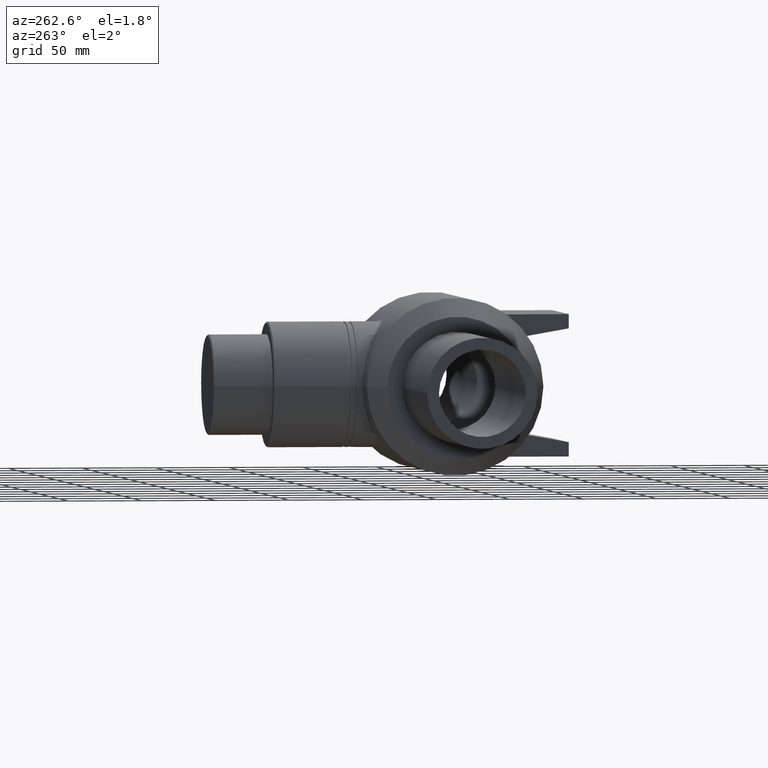
[diagram: clean part render]
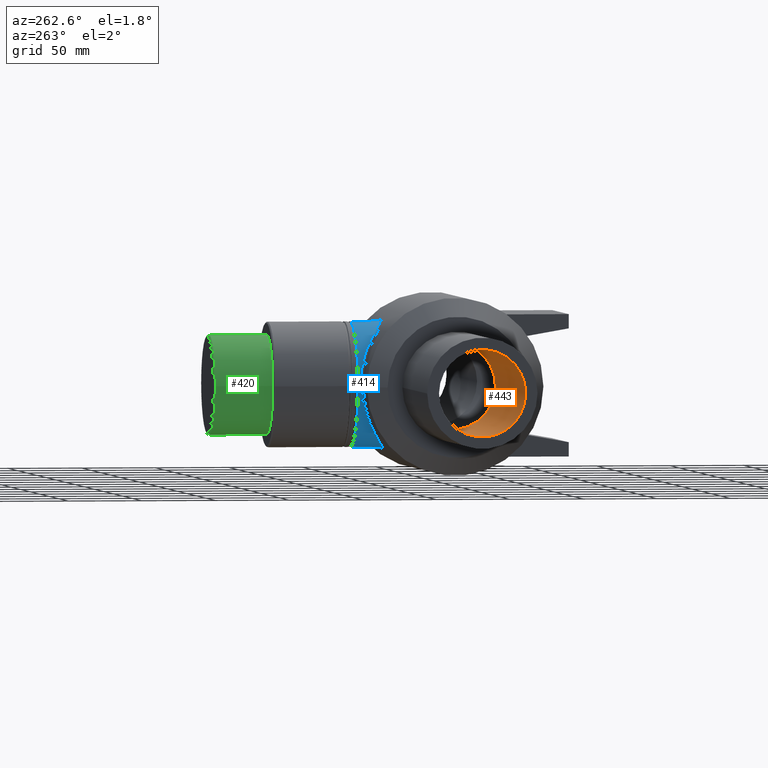
[diagram: same view with three faces highlighted in distinct colors, each labeled with its STEP entity id]
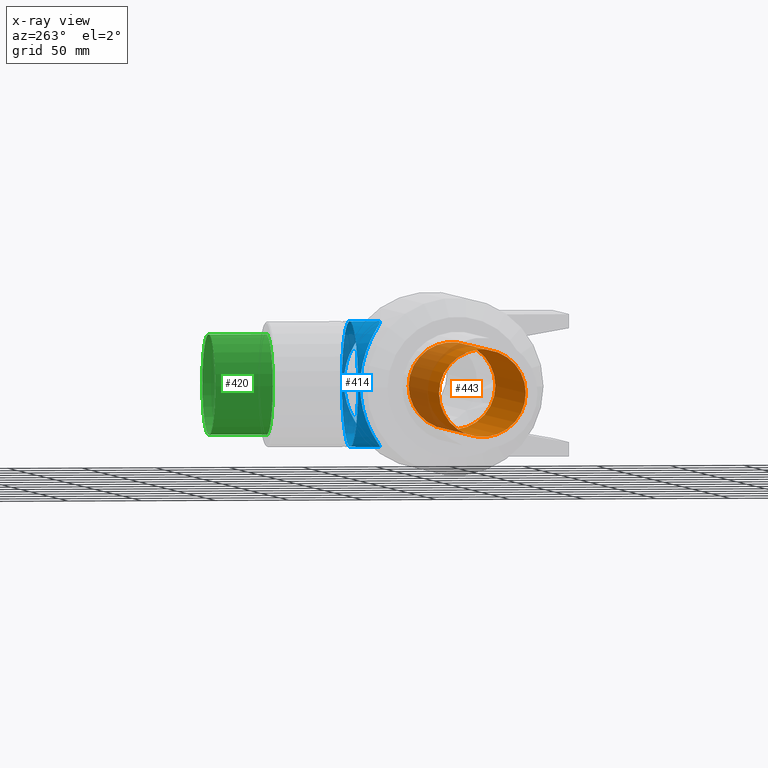
[diagram: x-ray of the same camera — body ghosted, the three highlighted faces saturated]
A machine part, auxiliary view with three faces highlighted in distinct colors.
The next image is the same camera in x-ray (body ghosted, the three faces saturated) — at least one of them is partly hidden behind the body in this view.
Their STEP definitions:

[orange] entity #443 — the highlighted cylindrical surface (bore or boss wall) has radius 29.5 mm, axis along (1, 0, 0).
#100=FACE_BOUND('',#196,.T.);
#110=CYLINDRICAL_SURFACE('',#501,29.5);
#141=FACE_OUTER_BOUND('',#195,.T.);
#195=EDGE_LOOP('',(#406));
#196=EDGE_LOOP('',(#407));
#226=CIRCLE('',#500,29.5);
#227=CIRCLE('',#502,29.5);
#265=VERTEX_POINT('',#942);
#266=VERTEX_POINT('',#945);
#313=EDGE_CURVE('',#265,#265,#226,.T.);
#314=EDGE_CURVE('',#266,#266,#227,.T.);
#406=ORIENTED_EDGE('',*,*,#314,.F.);
#407=ORIENTED_EDGE('',*,*,#313,.T.);
#443=ADVANCED_FACE('',(#141,#100),#110,.F.);
#500=AXIS2_PLACEMENT_3D('',#943,#632,#633);
#501=AXIS2_PLACEMENT_3D('',#944,#634,#635);
#502=AXIS2_PLACEMENT_3D('',#946,#636,#637);
#632=DIRECTION('center_axis',(1.,0.,0.));
#633=DIRECTION('ref_axis',(0.,0.,-1.));
#634=DIRECTION('center_axis',(1.,0.,0.));
#635=DIRECTION('ref_axis',(0.,1.,0.));
#636=DIRECTION('center_axis',(1.,0.,0.));
#637=DIRECTION('ref_axis',(0.,0.,-1.));
#942=CARTESIAN_POINT('',(-47.893762641914,29.5,0.));
#943=CARTESIAN_POINT('Origin',(-47.893762641914,0.,0.));
#944=CARTESIAN_POINT('Origin',(-127.446881320957,0.,0.));
#945=CARTESIAN_POINT('',(-207.,29.5,0.));
#946=CARTESIAN_POINT('Origin',(-207.,0.,0.));

[blue] entity #414 — the highlighted cylindrical surface (bore or boss wall) has radius 42.5 mm, axis along (0, 1, 0).
#78=FACE_BOUND('',#146,.T.);
#103=CYLINDRICAL_SURFACE('',#449,42.5);
#113=FACE_OUTER_BOUND('',#145,.T.);
#145=EDGE_LOOP('',(#320));
#146=EDGE_LOOP('',(#321));
#201=B_SPLINE_CURVE_WITH_KNOTS('',3,(#783,#784,#785,#786,#787,#788,#789,
#790,#791,#792,#793,#794,#795,#796,#797,#798,#799,#800,#801,#802,#803,#804,
#805,#806,#807,#808,#809),.UNSPECIFIED.,.T.,.F.,(4,1,1,1,1,1,1,1,1,1,1,
1,1,1,1,1,1,1,1,1,1,1,1,1,4),(13.4378781643652,14.397726604677,15.3575750449888,
17.2772719256124,18.2371203659242,19.196968806236,20.1568172465478,21.1166656868596,
22.3964636072753,23.6762615276911,24.9560594481068,26.2358573685225,26.8757563287304,
27.5156552889383,28.795453209354,30.0752511297697,31.3550490501855,32.6348469706012,
33.9146448910169,35.1944428114327,35.4077424648353,36.4742407318484,38.393937612472,
39.3537860527838,40.3136344930956),.UNSPECIFIED.);
#204=CIRCLE('',#450,42.5);
#230=VERTEX_POINT('',#781);
#231=VERTEX_POINT('',#838);
#269=EDGE_CURVE('',#230,#230,#201,.T.);
#271=EDGE_CURVE('',#231,#231,#204,.T.);
#320=ORIENTED_EDGE('',*,*,#271,.F.);
#321=ORIENTED_EDGE('',*,*,#269,.F.);
#414=ADVANCED_FACE('',(#113,#78),#103,.T.);
#449=AXIS2_PLACEMENT_3D('',#837,#510,#511);
#450=AXIS2_PLACEMENT_3D('',#839,#512,#513);
#510=DIRECTION('center_axis',(0.,1.,0.));
#511=DIRECTION('ref_axis',(-1.,0.,0.));
#512=DIRECTION('center_axis',(0.,1.,0.));
#513=DIRECTION('ref_axis',(1.,0.,0.));
#781=CARTESIAN_POINT('',(7.49400541621981E-15,43.0493902395841,-42.5));
#783=CARTESIAN_POINT('Ctrl Pts',(1.25698404267767E-5,43.0480225046465,-42.5005424073167));
#784=CARTESIAN_POINT('Ctrl Pts',(3.31372683486709,43.0480092307609,-42.500472329255));
#785=CARTESIAN_POINT('Ctrl Pts',(9.94107754026687,43.913881488286,-41.7089328960576));
#786=CARTESIAN_POINT('Ctrl Pts',(21.8843190824658,48.1874062859359,-37.3461269534512));
#787=CARTESIAN_POINT('Ctrl Pts',(31.5275075833872,53.9870544396641,-29.6438768625561));
#788=CARTESIAN_POINT('Ctrl Pts',(38.3660038482547,58.6608825073986,-19.1074770604644));
#789=CARTESIAN_POINT('Ctrl Pts',(41.7119166398985,61.1128337511332,-9.94419950297477));
#790=CARTESIAN_POINT('Ctrl Pts',(42.8950763578414,61.9941034239135,-0.0020380300446302));
#791=CARTESIAN_POINT('Ctrl Pts',(41.5808474291099,61.0140690529729,11.0567072920348));
#792=CARTESIAN_POINT('Ctrl Pts',(37.0467142288075,57.7015968158249,22.0731747138676));
#793=CARTESIAN_POINT('Ctrl Pts',(29.1797539044027,52.4957224728735,31.6869983521787));
#794=CARTESIAN_POINT('Ctrl Pts',(19.070884215594,47.0086326786858,38.6573475521818));
#795=CARTESIAN_POINT('Ctrl Pts',(8.84910537846431,43.6134175440461,41.975802555615));
#796=CARTESIAN_POINT('Ctrl Pts',(0.00121849886222416,42.8608743919858,42.6751883780441));
#797=CARTESIAN_POINT('Ctrl Pts',(-8.8511733426323,43.6140154104814,41.9756485531559));
#798=CARTESIAN_POINT('Ctrl Pts',(-19.0684267016382,47.007365344606,38.6576181564932));
#799=CARTESIAN_POINT('Ctrl Pts',(-29.181553690154,52.4976363672918,31.6871494067281));
#800=CARTESIAN_POINT('Ctrl Pts',(-37.0441098749641,57.6985962237677,22.0721243013389));
#801=CARTESIAN_POINT('Ctrl Pts',(-41.9991154287481,61.32048433932,10.0569935105954));
#802=CARTESIAN_POINT('Ctrl Pts',(-43.0726421096175,62.1291128449433,-3.40040474443963));
#803=CARTESIAN_POINT('Ctrl Pts',(-40.8138039419201,60.443023883324,-12.7386006268973));
#804=CARTESIAN_POINT('Ctrl Pts',(-37.407636672201,58.0079738399936,-20.558998252557));
#805=CARTESIAN_POINT('Ctrl Pts',(-31.7949095545494,54.1481429978695,-29.4339134432783));
#806=CARTESIAN_POINT('Ctrl Pts',(-21.8842002868569,48.1872196177261,-37.3446705423118));
#807=CARTESIAN_POINT('Ctrl Pts',(-9.94120804989313,43.9139611315994,-41.7093533644274));
#808=CARTESIAN_POINT('Ctrl Pts',(-3.31370169518624,43.0480357785321,-42.5006124853783));
#809=CARTESIAN_POINT('Ctrl Pts',(1.25698404261604E-5,43.0480225046465,-42.5005424073167));
#837=CARTESIAN_POINT('Origin',(0.,31.575,0.));
#838=CARTESIAN_POINT('',(-42.5,63.15,0.));
#839=CARTESIAN_POINT('Origin',(0.,63.15,0.));

[green] entity #420 — the highlighted cylindrical surface (bore or boss wall) has radius 34 mm, axis along (0, 1, 0).
#87=FACE_BOUND('',#161,.T.);
#106=CYLINDRICAL_SURFACE('',#468,34.);
#119=FACE_OUTER_BOUND('',#160,.T.);
#160=EDGE_LOOP('',(#341));
#161=EDGE_LOOP('',(#342));
#214=CIRCLE('',#464,34.);
#215=CIRCLE('',#466,34.);
#245=VERTEX_POINT('',#870);
#246=VERTEX_POINT('',#873);
#285=EDGE_CURVE('',#245,#245,#214,.T.);
#286=EDGE_CURVE('',#246,#246,#215,.T.);
#341=ORIENTED_EDGE('',*,*,#285,.T.);
#342=ORIENTED_EDGE('',*,*,#286,.F.);
#420=ADVANCED_FACE('',(#119,#87),#106,.T.);
#464=AXIS2_PLACEMENT_3D('',#871,#544,#545);
#466=AXIS2_PLACEMENT_3D('',#874,#548,#549);
#468=AXIS2_PLACEMENT_3D('',#877,#552,#553);
#544=DIRECTION('center_axis',(0.,1.,0.));
#545=DIRECTION('ref_axis',(1.,0.,0.));
#548=DIRECTION('center_axis',(0.,1.,0.));
#549=DIRECTION('ref_axis',(1.,0.,0.));
#552=DIRECTION('center_axis',(0.,1.,0.));
#553=DIRECTION('ref_axis',(-1.,0.,0.));
#870=CARTESIAN_POINT('',(-34.,120.,0.));
#871=CARTESIAN_POINT('Origin',(0.,120.,0.));
#873=CARTESIAN_POINT('',(-34.,159.15,4.163799117101E-15));
#874=CARTESIAN_POINT('Origin',(0.,159.15,0.));
#877=CARTESIAN_POINT('Origin',(0.,140.,0.));